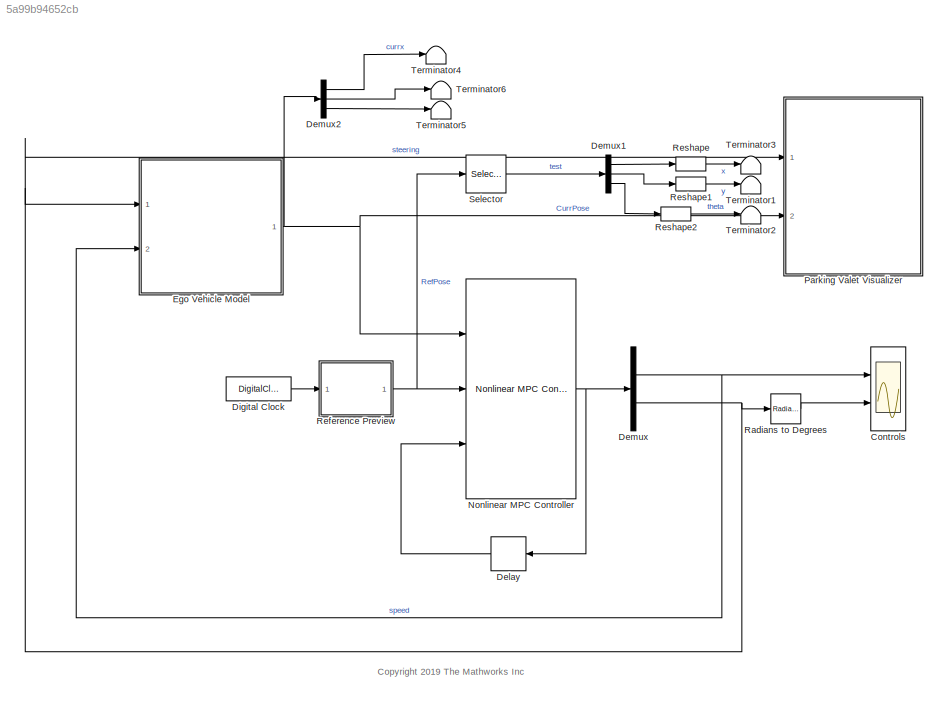
MODEL slx_5a99b94652cb
KIND model
CONFIG AbsTol = auto
CONFIG EnableMultiTasking = off
CONFIG FixedStep = auto
CONFIG MaxStep = auto
CONFIG MinStep = auto
CONFIG RelTol = 1e-3
CONFIG SampleTimeConstraint = Unconstrained
CONFIG SolverName = VariableStepAuto
CONFIG StartTime = 0.0
CONFIG StopTime = Duration
BLOCK [Scope] Controls
  Floating = off
  NumInputPorts = 2
  Ports = [2]
  ScopeSpecificationString = Simulink.scopes.TimeScopeBlockCfg('CurrentConfiguration', extmgr.ConfigurationSet(extmgr.Configuration('Core','General UI',true),extmgr.Configuration('Core','Source UI',true),extmgr.Configuration('Sources','WiredSimulink',true),extmgr.Configuration('Visuals','Time Domain',true,'SerializedDisplays',{struct('MinYLimReal','-1.07173','MaxYLimReal','7.3413','YLabelReal','','MinYLimMag','0.00000','MaxYL...<+1979ch>
BLOCK [Delay] Delay
  DelayLength = 1
  InputPortMap = u0
  Ports = [1, 1]
BLOCK [Demux] Demux
  Outputs = [1 1]
  Ports = [1, 2]
BLOCK [Demux] Demux1
  Outputs = 3
  Ports = [1, 3]
BLOCK [Demux] Demux2
  Outputs = 3
  Ports = [1, 3]
BLOCK [DigitalClock] Digital Clock
  SampleTime = Ts
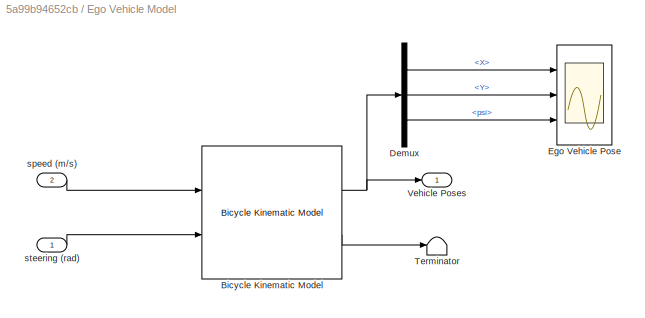
BLOCK [SubSystem] Ego Vehicle Model
  Ports = [2, 1]
  RequestExecContextInheritance = off
BLOCK [Reference] Ego Vehicle Model/Bicycle Kinematic Model  REF=robotmobilelib/Bicycle Kinematic Model
  Ports = [2, 2]
  SourceBlock = robotmobilelib/Bicycle Kinematic Model
  SourceProductBaseCode = RO
  SourceType = Bicycle Kinematic Model
BLOCK [Demux] Ego Vehicle Model/Demux
  Outputs = 3
  Ports = [1, 3]
BLOCK [Scope] Ego Vehicle Model/Ego Vehicle Pose
  Floating = off
  NumInputPorts = 3
  Ports = [3]
  ScopeSpecificationString = Simulink.scopes.TimeScopeBlockCfg('CurrentConfiguration', extmgr.ConfigurationSet(extmgr.Configuration('Core','General UI',true),extmgr.Configuration('Core','Source UI',true),extmgr.Configuration('Sources','WiredSimulink',true,'DataLoggingVariableName','ScopeData1'),extmgr.Configuration('Visuals','Time Domain',true,'SerializedDisplays',{struct('MinYLimReal','0.01484','MaxYLimReal','39.86643','YLab...<+2745ch>
BLOCK [Terminator] Ego Vehicle Model/Terminator
BLOCK [Outport] Ego Vehicle Model/Vehicle Poses
BLOCK [Inport] Ego Vehicle Model/speed (m//s)
  Port = 2
BLOCK [Inport] Ego Vehicle Model/steering (rad)
BLOCK [Reference] Nonlinear MPC Controller  REF=mpclib/Nonlinear MPC Controller  (lib defined in mdl_ae329e0e0455)
  Ports = [3, 1]
  SCDEnableBlockLinearizationSpecification = on
  SourceBlock = mpclib/Nonlinear MPC Controller
  SourceProductBaseCode = MP
  SourceType = NonlinearMPC
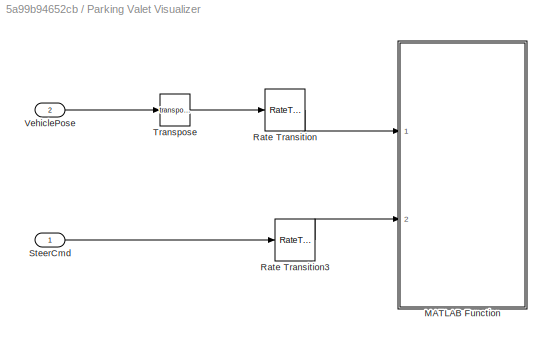
BLOCK [SubSystem] Parking Valet Visualizer
  Commented = on
  Ports = [2]
  RequestExecContextInheritance = off
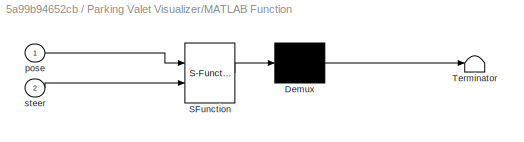
BLOCK [SubSystem] Parking Valet Visualizer/MATLAB Function
  ErrorFcn = Stateflow.Translate.translate
  PermitHierarchicalResolution = ExplicitOnly
  Ports = [2]
  RequestExecContextInheritance = off
  SFBlockType = MATLAB Function
  TreatAsAtomicUnit = on
BLOCK [Demux] Parking Valet Visualizer/MATLAB Function/ Demux 
  Outputs = 1
  Ports = [1, 1]
BLOCK [S-Function] Parking Valet Visualizer/MATLAB Function/ SFunction 
  EnableBusSupport = on
  FunctionName = sf_sfun
  Parameters = costmapStruct
  PortCounts = [2 1]
  Ports = [2, 1]
  SFcnIsStateOwnerBlock = off
  SFunctionDeploymentMode = off
  Tag = Stateflow S-Function 2
BLOCK [Terminator] Parking Valet Visualizer/MATLAB Function/ Terminator 
BLOCK [Inport] Parking Valet Visualizer/MATLAB Function/pose
BLOCK [Inport] Parking Valet Visualizer/MATLAB Function/steer
  Port = 2
BLOCK [RateTransition] Parking Valet Visualizer/Rate Transition
  OutPortSampleTime = Tv
BLOCK [RateTransition] Parking Valet Visualizer/Rate Transition3
  OutPortSampleTime = Tv
BLOCK [Inport] Parking Valet Visualizer/SteerCmd
BLOCK [Math] Parking Valet Visualizer/Transpose
  Operator = transpose
  Ports = [1, 1]
BLOCK [Inport] Parking Valet Visualizer/VehiclePose
  Port = 2
BLOCK [Reference] Radians to Degrees  REF=simulink_extras/Transformations/Radians
to Degrees
  Ports = [1, 1]
  SourceBlock = simulink_extras/Transformations/Radians\nto Degrees
  SourceProductBaseCode = SL
  SourceType = RadiansToDegrees
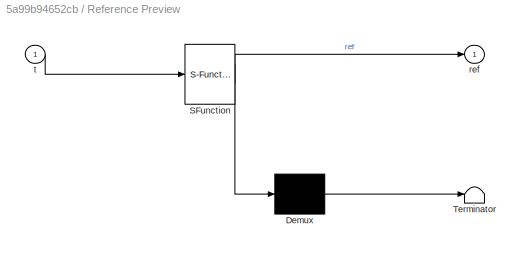
BLOCK [SubSystem] Reference Preview
  ErrorFcn = Stateflow.Translate.translate
  PermitHierarchicalResolution = ExplicitOnly
  Ports = [1, 1]
  RequestExecContextInheritance = off
  SFBlockType = MATLAB Function
  TreatAsAtomicUnit = on
BLOCK [Demux] Reference Preview/ Demux 
  Outputs = 1
  Ports = [1, 1]
BLOCK [S-Function] Reference Preview/ SFunction 
  EnableBusSupport = on
  FunctionName = sf_sfun
  Parameters = Ts,info,pTracking
  PortCounts = [1 2]
  Ports = [1, 2]
  SFcnIsStateOwnerBlock = off
  SFunctionDeploymentMode = off
  Tag = Stateflow S-Function 1
BLOCK [Terminator] Reference Preview/ Terminator 
BLOCK [Outport] Reference Preview/ref
  VectorParamsAs1DForOutWhenUnconnected = off
BLOCK [Inport] Reference Preview/t
BLOCK [Reshape] Reshape
  OutputDimensionality = Customize
  OutputDimensions = [1]
  Ports = [1, 1]
BLOCK [Reshape] Reshape1
  OutputDimensionality = Customize
  OutputDimensions = [1]
  Ports = [1, 1]
BLOCK [Reshape] Reshape2
  OutputDimensionality = Customize
  OutputDimensions = [1]
  Ports = [1, 1]
BLOCK [Selector] Selector
  IndexOptions = Index vector (dialog),Index vector (dialog)
  Indices = 1,[1:3]
  InputPortWidth = 3
  NumberOfDimensions = 2
  OutputSizes = 1,1
  Ports = [1, 1]
BLOCK [Terminator] Terminator1
BLOCK [Terminator] Terminator2
BLOCK [Terminator] Terminator3
BLOCK [Terminator] Terminator4
BLOCK [Terminator] Terminator5
BLOCK [Terminator] Terminator6
ANNOTATION (root): <copyright redacted>
LINE Delay:1 -> Nonlinear MPC Controller:3
LINE Demux1:1 -> Reshape:1
LINE Demux1:2 -> Reshape1:1
LINE Demux1:3 -> Reshape2:1
LINE Demux2:1 -> Terminator4:1
LINE Demux2:2 -> Terminator6:1
LINE Demux2:3 -> Terminator5:1
NET Demux:1 -> Controls:1, Ego Vehicle Model:2
NET Demux:2 -> Ego Vehicle Model:1, Parking Valet Visualizer:1, Radians to Degrees:1
LINE Digital Clock:1 -> Reference Preview:1
NET Ego Vehicle Model/Bicycle Kinematic Model:1 -> Ego Vehicle Model/Demux:1, Ego Vehicle Model/Vehicle Poses:1
LINE Ego Vehicle Model/Bicycle Kinematic Model:2 -> Ego Vehicle Model/Terminator:1
LINE Ego Vehicle Model/Demux:1 -> Ego Vehicle Model/Ego Vehicle Pose:1
LINE Ego Vehicle Model/Demux:2 -> Ego Vehicle Model/Ego Vehicle Pose:2
LINE Ego Vehicle Model/Demux:3 -> Ego Vehicle Model/Ego Vehicle Pose:3
LINE Ego Vehicle Model/speed (m//s):1 -> Ego Vehicle Model/Bicycle Kinematic Model:1
LINE Ego Vehicle Model/steering (rad):1 -> Ego Vehicle Model/Bicycle Kinematic Model:2
NET Ego Vehicle Model:1 -> Demux2:1, Nonlinear MPC Controller:1, Parking Valet Visualizer:2
NET Nonlinear MPC Controller:1 -> Delay:1, Demux:1
LINE Parking Valet Visualizer/Rate Transition3:1 -> Parking Valet Visualizer/MATLAB Function:2
LINE Parking Valet Visualizer/Rate Transition:1 -> Parking Valet Visualizer/MATLAB Function:1
LINE Parking Valet Visualizer/SteerCmd:1 -> Parking Valet Visualizer/Rate Transition3:1
LINE Parking Valet Visualizer/Transpose:1 -> Parking Valet Visualizer/Rate Transition:1
LINE Parking Valet Visualizer/VehiclePose:1 -> Parking Valet Visualizer/Transpose:1
LINE Radians to Degrees:1 -> Controls:2
NET Reference Preview:1 -> Nonlinear MPC Controller:2, Selector:1
LINE Reshape1:1 -> Terminator1:1
LINE Reshape2:1 -> Terminator2:1
LINE Reshape:1 -> Terminator3:1
LINE Selector:1 -> Demux1:1
note: NET lines group one-source signal fan-out (src -> all destinations, sorted); 1:1 wires keep LINE
CHART Reference Preview states=1 transitions=1
  STATE_LABEL 'eML_blk_kernel()'
  STATE_LABEL 'SCRIPT:\nfunction ref = fcn(t,Ts,info,pTracking)\nTend = info.Topt(end);\nT = t+(1:pTracking)*Ts;\nT = min(T,Tend);\nref = interp1(info.Topt,info.Xopt(:,1:3),T);\n'
CHART Parking Valet Visualizer/MATLAB Function states=1 transitions=1
  STATE_LABEL 'eML_blk_kernel()'
  STATE_LABEL "SCRIPT:\nfunction visualizeParkingValet(pose, steer, costmapStruct)\n\n%visualizePath Display simulation results.\n\ncoder.extrinsic('helperSLVisualizeParkingValet');\n\nhelperSLVisualizeParkingValet(pose, steer, costmapStruct);"
CHART  states=0 transitions=0
CHART  states=0 transitions=0
